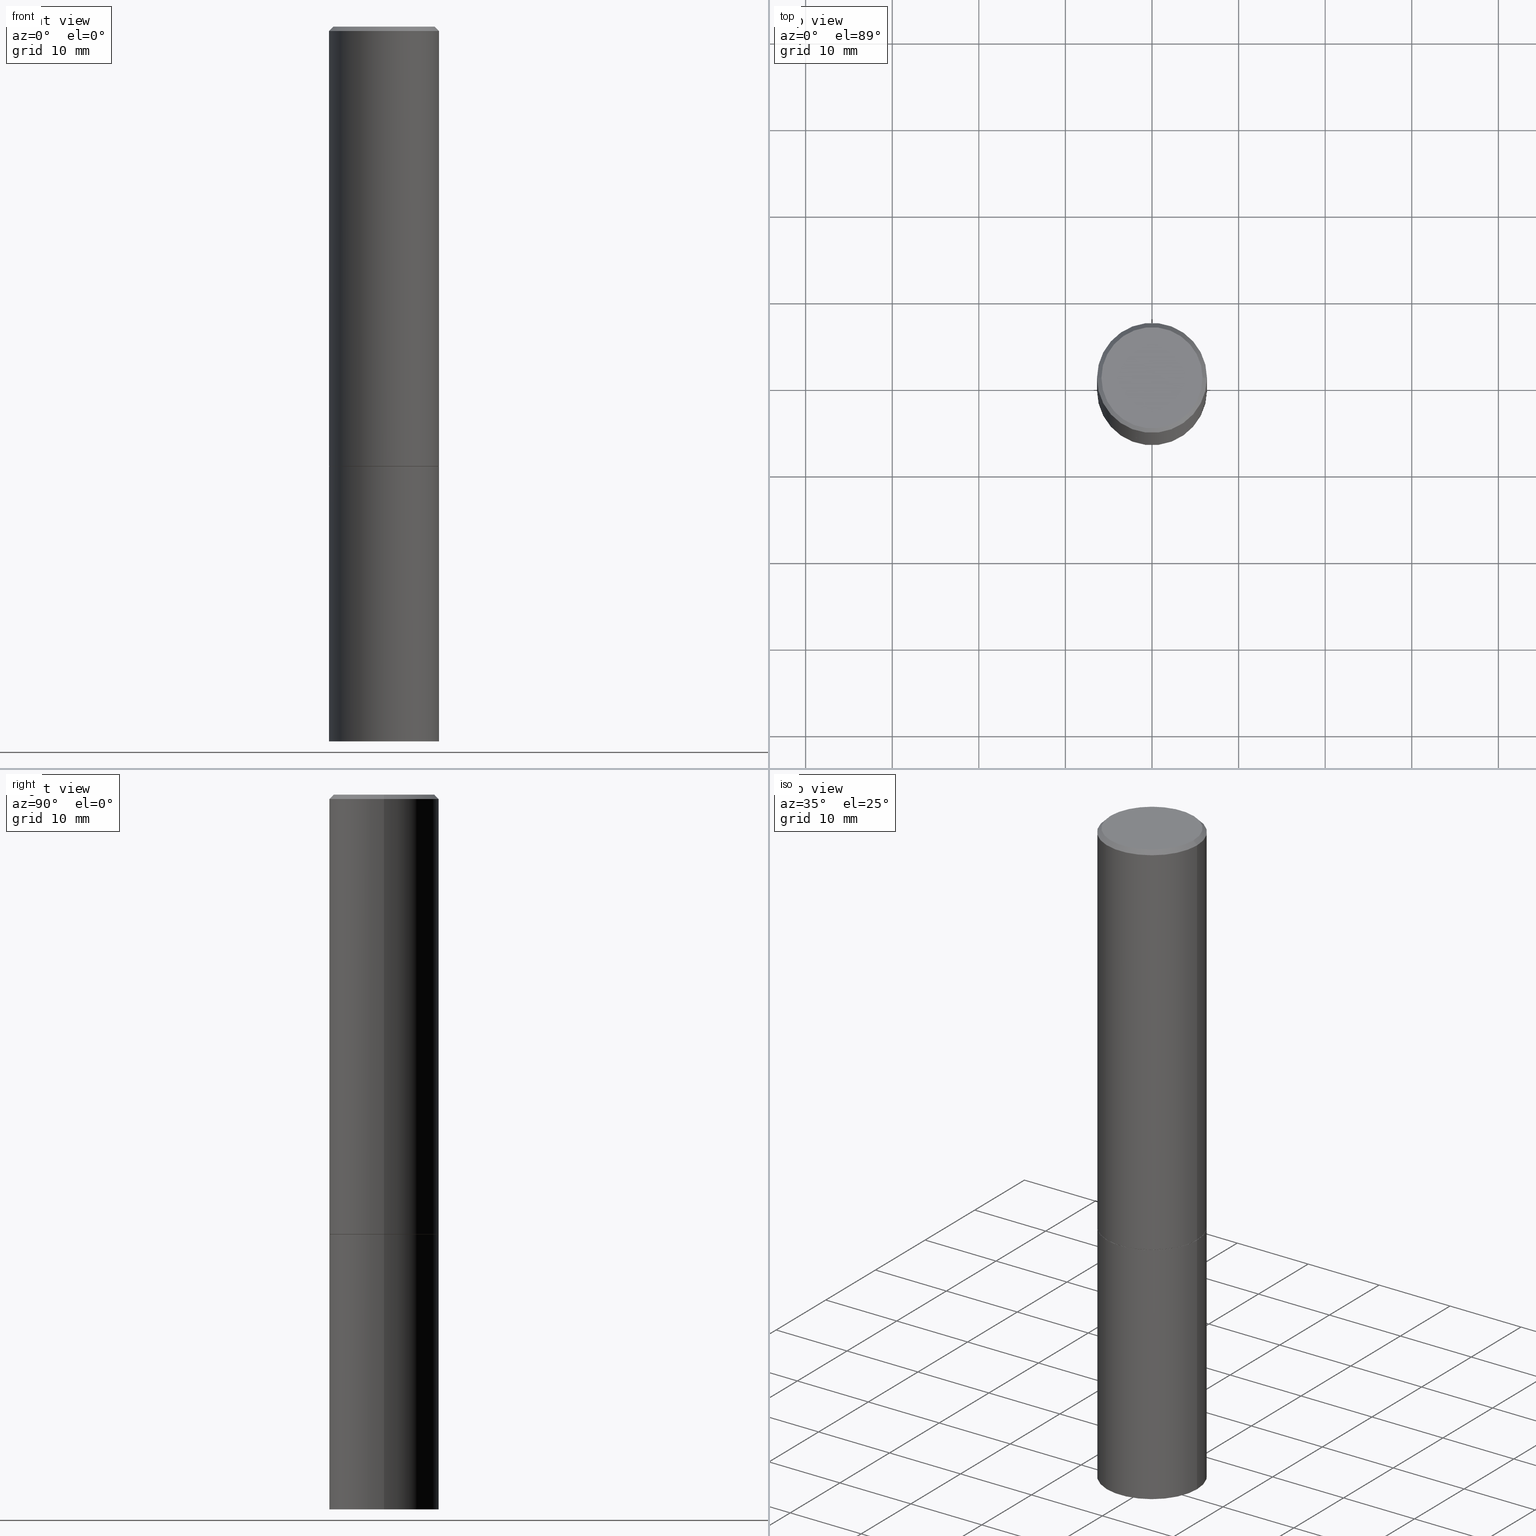
[diagram: canonical four-view strip — front | top / right | iso, engineering-drawing reading convention]
A machine part, canonical four-view strip (front | top / right | iso — engineering-drawing reading convention). The complete STEP part file that produces these views, byte-faithful:
ISO-10303-21;
HEADER;
FILE_DESCRIPTION (( 'STEP AP203' ),
    '1' );
FILE_NAME ('34625.STEP',
    '2024-02-27T16:30:26',
    ( '' ),
    ( '' ),
    'SwSTEP 2.0',
    'SolidWorks 2023',
    '' );
FILE_SCHEMA (( 'CONFIG_CONTROL_DESIGN' ));
ENDSEC;

DATA;
#1 = CARTESIAN_POINT ( 'NONE',  ( 7.947773620101693940E-29, -1.134731435124022443E-14, -3.250000000000000000 ) ) ;
#2 = CC_DESIGN_DATE_AND_TIME_ASSIGNMENT ( #306, #194, ( #244 ) ) ;
#3 = CARTESIAN_POINT ( 'NONE',  ( 4.890937612370272633E-29, -6.982962677686290376E-15, -1.999999999999999778 ) ) ;
#4 = EDGE_LOOP ( 'NONE', ( #330, #25, #141, #225 ) ) ;
#5 = ORIENTED_EDGE ( 'NONE', *, *, #246, .T. ) ;
#6 = VECTOR ( 'NONE', #48, 39.37007874015748143 ) ;
#7 = AXIS2_PLACEMENT_3D ( 'NONE', #85, #186, #196 ) ;
#8 = ORIENTED_EDGE ( 'NONE', *, *, #304, .F. ) ;
#9 = PLANE ( 'NONE',  #253 ) ;
#10 = MANIFOLD_SOLID_BREP ( 'Body-Move/Copy2[1]', #347 ) ;
#11 = LENGTH_MEASURE_WITH_UNIT ( LENGTH_MEASURE( 0.02539999999999999897 ), #316 );
#12 = DIRECTION ( 'NONE',  ( -2.445468806185136597E-29, 3.491481338843145583E-15, 1.000000000000000000 ) ) ;
#13 = VECTOR ( 'NONE', #72, 39.37007874015748143 ) ;
#14 = COORDINATED_UNIVERSAL_TIME_OFFSET ( 5, 0, .BEHIND. ) ;
#15 = PLANE ( 'NONE',  #130 ) ;
#16 = DIRECTION ( 'NONE',  ( -2.445468806185136877E-29, 3.491481338843145188E-15, 1.000000000000000000 ) ) ;
#17 = CARTESIAN_POINT ( 'NONE',  ( 0.000000000000000000, 0.000000000000000000, 0.000000000000000000 ) ) ;
#18 = CIRCLE ( 'NONE', #226, 0.2489999999999999991 ) ;
#19 = DIRECTION ( 'NONE',  ( 1.000000000000000000, -6.982962677686266711E-15, 0.000000000000000000 ) ) ;
#20 = CARTESIAN_POINT ( 'NONE',  ( 4.890937612370288923E-31, -6.982962677686312563E-17, -0.02000000000000006287 ) ) ;
#21 = EDGE_LOOP ( 'NONE', ( #255, #86, #183, #201 ) ) ;
#22 = LOCAL_TIME ( 11, 30, 26.00000000000000000, #14 ) ;
#23 = DIRECTION ( 'NONE',  ( -2.445468806185136597E-29, 3.491481338843145583E-15, 1.000000000000000000 ) ) ;
#24 = DIRECTION ( 'NONE',  ( -2.445468806185136597E-29, 3.491481338843145583E-15, 1.000000000000000000 ) ) ;
#25 = ORIENTED_EDGE ( 'NONE', *, *, #240, .T. ) ;
#26 = CIRCLE ( 'NONE', #231, 0.2500000000000000000 ) ;
#27 = DIRECTION ( 'NONE',  ( -0.7071067811865467956, 2.468850131082249172E-15, -0.7071067811865482389 ) ) ;
#28 = AXIS2_PLACEMENT_3D ( 'NONE', #151, #125, #358 ) ;
#29 = EDGE_LOOP ( 'NONE', ( #148, #341 ) ) ;
#30 = SHAPE_DEFINITION_REPRESENTATION ( #93, #52 ) ;
#31 = ORIENTED_EDGE ( 'NONE', *, *, #346, .T. ) ;
#32 = EDGE_CURVE ( 'NONE', #63, #311, #81, .T. ) ;
#33 = FACE_OUTER_BOUND ( 'NONE', #337, .T. ) ;
#34 = APPROVAL_ROLE ( '' ) ;
#35 = APPROVAL_DATE_TIME ( #351, #364 ) ;
#36 = AXIS2_PLACEMENT_3D ( 'NONE', #234, #61, #348 ) ;
#37 = FACE_OUTER_BOUND ( 'NONE', #343, .T. ) ;
#38 = PERSON_AND_ORGANIZATION ( #269, #289 ) ;
#39 = CARTESIAN_POINT ( 'NONE',  ( -0.2489999999999999991, -5.208412811295418518E-15, -1.999999999999999778 ) ) ;
#40 = PERSON_AND_ORGANIZATION_ROLE ( 'classification_officer' ) ;
#41 = DIRECTION ( 'NONE',  ( 1.000000000000000000, -6.982962677686266711E-15, 4.876176775795935793E-29 ) ) ;
#42 = PRODUCT_DEFINITION ( 'UNKNOWN', '', #90, #172 ) ;
#43 = CARTESIAN_POINT ( 'NONE',  ( 4.890937612370272633E-29, -6.982962677686290376E-15, -1.999999999999999778 ) ) ;
#44 =( GEOMETRIC_REPRESENTATION_CONTEXT ( 3 ) GLOBAL_UNCERTAINTY_ASSIGNED_CONTEXT ( ( #195 ) ) GLOBAL_UNIT_ASSIGNED_CONTEXT ( ( #299, #163, #290 ) ) REPRESENTATION_CONTEXT ( 'NONE', 'WORKASPACE' ) );
#45 = DIRECTION ( 'NONE',  ( 1.000000000000000000, -6.982962677686266711E-15, 0.000000000000000000 ) ) ;
#46 = ADVANCED_FACE ( 'NONE', ( #223 ), #133, .T. ) ;
#47 = DIRECTION ( 'NONE',  ( 1.000000000000000000, -6.982962677686266711E-15, 4.876176775795935793E-29 ) ) ;
#48 = DIRECTION ( 'NONE',  ( 0.7071067811866199593, -2.468850131083015945E-15, 0.7071067811864750752 ) ) ;
#49 = EDGE_CURVE ( 'NONE', #345, #295, #219, .T. ) ;
#50 = PERSON_AND_ORGANIZATION ( #269, #289 ) ;
#51 = CARTESIAN_POINT ( 'NONE',  ( 0.2500000000000000000, -1.745740669421566678E-15, 1.219044193948983948E-29 ) ) ;
#52 = ADVANCED_BREP_SHAPE_REPRESENTATION ( '34625', ( #10, #134, #28 ), #44 ) ;
#53 = CIRCLE ( 'NONE', #266, 0.2500000000000000000 ) ;
#54 = CARTESIAN_POINT ( 'NONE',  ( -0.2499999999999998890, 1.776356839400249676E-15, -1.229733772563726025E-29 ) ) ;
#55 = APPROVAL_ROLE ( '' ) ;
#56 = ORIENTED_EDGE ( 'NONE', *, *, #159, .F. ) ;
#57 = ORIENTED_EDGE ( 'NONE', *, *, #354, .T. ) ;
#58 = EDGE_LOOP ( 'NONE', ( #366, #308, #176, #188 ) ) ;
#59 = CIRCLE ( 'NONE', #303, 0.2299999999999997602 ) ;
#60 = AXIS2_PLACEMENT_3D ( 'NONE', #270, #182, #47 ) ;
#61 = DIRECTION ( 'NONE',  ( -2.438088387897960049E-29, 3.491481338843145188E-15, 1.000000000000000000 ) ) ;
#62 = CARTESIAN_POINT ( 'NONE',  ( -0.2299999999999997602, 1.640996229256270941E-15, 4.268512490089056766E-18 ) ) ;
#63 = VERTEX_POINT ( 'NONE', #293 ) ;
#64 = PERSON_AND_ORGANIZATION ( #269, #289 ) ;
#65 = DIRECTION ( 'NONE',  ( 1.000000000000000000, -6.982962677686266711E-15, 0.000000000000000000 ) ) ;
#66 = EDGE_CURVE ( 'NONE', #311, #251, #180, .T. ) ;
#67 = PERSON_AND_ORGANIZATION ( #269, #289 ) ;
#68 = DIRECTION ( 'NONE',  ( 1.000000000000000000, -6.982962677686266711E-15, 0.000000000000000000 ) ) ;
#69 = AXIS2_PLACEMENT_3D ( 'NONE', #352, #268, #326 ) ;
#70 = LOCAL_TIME ( 11, 30, 26.00000000000000000, #73 ) ;
#71 = SECURITY_CLASSIFICATION_LEVEL ( 'unclassified' ) ;
#72 = DIRECTION ( 'NONE',  ( -0.7071067811866199593, 7.493145998870616062E-15, 0.7071067811864750752 ) ) ;
#73 = COORDINATED_UNIVERSAL_TIME_OFFSET ( 5, 0, .BEHIND. ) ;
#74 = CARTESIAN_POINT ( 'NONE',  ( 4.890937612370273194E-29, -6.982962677686291165E-15, -2.000000000000000000 ) ) ;
#75 = EDGE_CURVE ( 'NONE', #109, #91, #26, .T. ) ;
#76 = DIRECTION ( 'NONE',  ( -2.445468806185136597E-29, 3.491481338843145583E-15, 1.000000000000000000 ) ) ;
#77 = CIRCLE ( 'NONE', #279, 0.2500000000000000000 ) ;
#78 = AXIS2_PLACEMENT_3D ( 'NONE', #258, #12, #122 ) ;
#79 = DIRECTION ( 'NONE',  ( -2.445468806185136597E-29, 3.491481338843145583E-15, 1.000000000000000000 ) ) ;
#80 = ORIENTED_EDGE ( 'NONE', *, *, #75, .T. ) ;
#81 = LINE ( 'NONE', #192, #6 ) ;
#82 = APPROVAL ( #191, 'UNSPECIFIED' ) ;
#83 = AXIS2_PLACEMENT_3D ( 'NONE', #20, #76, #132 ) ;
#84 = APPLICATION_CONTEXT ( 'configuration controlled 3d designs of mechanical parts and assemblies' ) ;
#85 = CARTESIAN_POINT ( 'NONE',  ( 7.947773620101693940E-29, -1.134731435124022443E-14, -3.250000000000000000 ) ) ;
#86 = ORIENTED_EDGE ( 'NONE', *, *, #283, .T. ) ;
#87 = CALENDAR_DATE ( 2024, 27, 2 ) ;
#88 = ORIENTED_EDGE ( 'NONE', *, *, #261, .F. ) ;
#89 = CIRCLE ( 'NONE', #220, 0.2500000000000000000 ) ;
#90 = PRODUCT_DEFINITION_FORMATION_WITH_SPECIFIED_SOURCE ( 'ANY', '', #108, .NOT_KNOWN. ) ;
#91 = VERTEX_POINT ( 'NONE', #155 ) ;
#92 = FACE_OUTER_BOUND ( 'NONE', #94, .T. ) ;
#93 = PRODUCT_DEFINITION_SHAPE ( 'NONE', 'NONE',  #42 ) ;
#94 = EDGE_LOOP ( 'NONE', ( #281, #228, #227, #300 ) ) ;
#95 = AXIS2_PLACEMENT_3D ( 'NONE', #230, #344, #96 ) ;
#96 = DIRECTION ( 'NONE',  ( 1.000000000000000000, -6.982962677686266711E-15, 4.876176775795935793E-29 ) ) ;
#97 = CARTESIAN_POINT ( 'NONE',  ( -0.2489999999999999991, -5.213711265643640920E-15, -1.999999999999999778 ) ) ;
#98 = APPLICATION_CONTEXT ( 'configuration controlled 3d designs of mechanical parts and assemblies' ) ;
#99 = APPROVAL_ROLE ( '' ) ;
#100 = DIRECTION ( 'NONE',  ( -2.445468806185136877E-29, 3.491481338843145188E-15, 1.000000000000000000 ) ) ;
#101 = MECHANICAL_CONTEXT ( 'NONE', #84, 'mechanical' ) ;
#102 = CYLINDRICAL_SURFACE ( 'NONE', #275, 0.2500000000000000000 ) ;
#103 = EDGE_CURVE ( 'NONE', #311, #345, #77, .T. ) ;
#104 = CARTESIAN_POINT ( 'NONE',  ( -1.043851414335219820E-46, 1.490343170380447200E-32, 4.268512490100411279E-18 ) ) ;
#105 = CARTESIAN_POINT ( 'NONE',  ( -0.2500000000000000000, -1.748293572161903489E-15, -1.998999999999999888 ) ) ;
#106 = LINE ( 'NONE', #224, #165 ) ;
#107 = DIRECTION ( 'NONE',  ( 1.000000000000000000, -6.982962677686267499E-15, 4.876225828469313926E-29 ) ) ;
#108 = PRODUCT ( '34625', '34625', '', ( #101 ) ) ;
#109 = VERTEX_POINT ( 'NONE', #178 ) ;
#110 = DATE_AND_TIME ( #87, #350 ) ;
#111 = CC_DESIGN_PERSON_AND_ORGANIZATION_ASSIGNMENT ( #64, #235, ( #108 ) ) ;
#112 = CARTESIAN_POINT ( 'NONE',  ( 4.888492143564087591E-29, -6.979471196347447369E-15, -1.998999999999999888 ) ) ;
#113 = VERTEX_POINT ( 'NONE', #39 ) ;
#114 = ADVANCED_FACE ( 'NONE', ( #129 ), #262, .F. ) ;
#115 = ORIENTED_EDGE ( 'NONE', *, *, #240, .F. ) ;
#116 = VECTOR ( 'NONE', #187, 39.37007874015748143 ) ;
#117 = ORIENTED_EDGE ( 'NONE', *, *, #317, .T. ) ;
#118 = VERTEX_POINT ( 'NONE', #62 ) ;
#119 = DIRECTION ( 'NONE',  ( 2.438088387897960049E-29, -3.491481338843145188E-15, -1.000000000000000000 ) ) ;
#120 = AXIS2_PLACEMENT_3D ( 'NONE', #140, #247, #45 ) ;
#121 = LOCAL_TIME ( 11, 30, 26.00000000000000000, #179 ) ;
#122 = DIRECTION ( 'NONE',  ( 1.000000000000000000, -6.982962677686266711E-15, 0.000000000000000000 ) ) ;
#123 = CALENDAR_DATE ( 2024, 27, 2 ) ;
#124 = DIRECTION ( 'NONE',  ( 2.438088387897960049E-29, -3.491481338843145188E-15, -1.000000000000000000 ) ) ;
#125 = DIRECTION ( 'NONE',  ( 0.000000000000000000, 0.000000000000000000, 1.000000000000000000 ) ) ;
#126 = CYLINDRICAL_SURFACE ( 'NONE', #95, 0.2499999999999998890 ) ;
#127 = ADVANCED_FACE ( 'NONE', ( #92 ), #146, .T. ) ;
#128 = PERSON_AND_ORGANIZATION ( #269, #289 ) ;
#129 = FACE_OUTER_BOUND ( 'NONE', #136, .T. ) ;
#130 = AXIS2_PLACEMENT_3D ( 'NONE', #356, #124, #206 ) ;
#131 = APPROVAL_PERSON_ORGANIZATION ( #50, #82, #55 ) ;
#132 = DIRECTION ( 'NONE',  ( 1.000000000000000000, -6.982962677686266711E-15, 0.000000000000000000 ) ) ;
#133 = CYLINDRICAL_SURFACE ( 'NONE', #211, 0.2499999999999998890 ) ;
#134 = MANIFOLD_SOLID_BREP ( 'Body-Move/Copy2[2]', #302 ) ;
#135 = DIRECTION ( 'NONE',  ( 2.445468806185136597E-29, -3.491481338843145583E-15, -1.000000000000000000 ) ) ;
#136 = EDGE_LOOP ( 'NONE', ( #8, #215 ) ) ;
#137 = LOCAL_TIME ( 11, 30, 26.00000000000000000, #257 ) ;
#138 = DIRECTION ( 'NONE',  ( -2.445468806185136597E-29, 3.491481338843145583E-15, 1.000000000000000000 ) ) ;
#139 = ADVANCED_FACE ( 'NONE', ( #291 ), #9, .F. ) ;
#140 = CARTESIAN_POINT ( 'NONE',  ( 4.890937612370288923E-31, -6.982962677686312563E-17, -0.02000000000000006287 ) ) ;
#141 = ORIENTED_EDGE ( 'NONE', *, *, #75, .F. ) ;
#142 = DIRECTION ( 'NONE',  ( -2.445468806185136597E-29, 3.491481338843145583E-15, 1.000000000000000000 ) ) ;
#143 = ORIENTED_EDGE ( 'NONE', *, *, #49, .F. ) ;
#144 = ORIENTED_EDGE ( 'NONE', *, *, #283, .F. ) ;
#145 = VECTOR ( 'NONE', #16, 39.37007874015748143 ) ;
#146 = CONICAL_SURFACE ( 'NONE', #213, 0.2489999999999999991, 0.7853981633975507526 ) ;
#147 = CC_DESIGN_APPROVAL ( #276, ( #90 ) ) ;
#148 = ORIENTED_EDGE ( 'NONE', *, *, #301, .F. ) ;
#149 = DIRECTION ( 'NONE',  ( -2.445468806185136597E-29, 3.491481338843145583E-15, 1.000000000000000000 ) ) ;
#150 = ADVANCED_FACE ( 'NONE', ( #37 ), #126, .T. ) ;
#151 = CARTESIAN_POINT ( 'NONE',  ( 0.000000000000000000, 0.000000000000000000, 0.000000000000000000 ) ) ;
#152 = PLANE ( 'NONE',  #363 ) ;
#153 = PERSON_AND_ORGANIZATION ( #269, #289 ) ;
#154 = PERSON_AND_ORGANIZATION_ROLE ( 'creator' ) ;
#155 = CARTESIAN_POINT ( 'NONE',  ( -0.2500000000000000000, -7.388781675063007725E-15, -2.000000000000000000 ) ) ;
#156 = DIRECTION ( 'NONE',  ( -1.000000000000000000, 6.982962677686265922E-15, -4.876176775795935793E-29 ) ) ;
#157 = AXIS2_PLACEMENT_3D ( 'NONE', #104, #263, #365 ) ;
#158 = CARTESIAN_POINT ( 'NONE',  ( -1.043851414335219820E-46, 1.490343170380447200E-32, 4.268512490100411279E-18 ) ) ;
#159 = EDGE_CURVE ( 'NONE', #113, #345, #324, .T. ) ;
#160 = DIRECTION ( 'NONE',  ( 1.000000000000000000, -6.982962677686266711E-15, 4.876176775795935793E-29 ) ) ;
#161 = LINE ( 'NONE', #243, #170 ) ;
#162 = CYLINDRICAL_SURFACE ( 'NONE', #60, 0.2500000000000000000 ) ;
#163 =( NAMED_UNIT ( * ) PLANE_ANGLE_UNIT ( ) SI_UNIT ( $, .RADIAN. ) );
#164 = DIMENSIONAL_EXPONENTS ( 1.000000000000000000, 0.000000000000000000, 0.000000000000000000, 0.000000000000000000, 0.000000000000000000, 0.000000000000000000, 0.000000000000000000 ) ;
#165 = VECTOR ( 'NONE', #336, 39.37007874015748143 ) ;
#166 = ADVANCED_FACE ( 'NONE', ( #322 ), #15, .F. ) ;
#167 = ADVANCED_FACE ( 'NONE', ( #318 ), #102, .T. ) ;
#168 = CARTESIAN_POINT ( 'NONE',  ( 0.000000000000000000, 0.000000000000000000, 0.000000000000000000 ) ) ;
#169 = LINE ( 'NONE', #51, #174 ) ;
#170 = VECTOR ( 'NONE', #27, 39.37007874015748143 ) ;
#171 = ORIENTED_EDGE ( 'NONE', *, *, #327, .T. ) ;
#172 = DESIGN_CONTEXT ( 'detailed design', #98, 'design' ) ;
#173 = ORIENTED_EDGE ( 'NONE', *, *, #265, .T. ) ;
#174 = VECTOR ( 'NONE', #361, 39.37007874015748143 ) ;
#175 = DIRECTION ( 'NONE',  ( -1.000000000000000000, 6.982962677686265922E-15, -4.876176775795935793E-29 ) ) ;
#176 = ORIENTED_EDGE ( 'NONE', *, *, #252, .F. ) ;
#177 = DIRECTION ( 'NONE',  ( 1.000000000000000000, -6.982962677686266711E-15, 0.000000000000000000 ) ) ;
#178 = CARTESIAN_POINT ( 'NONE',  ( 0.2500000000000000000, -8.728703347107857054E-15, -2.000000000000000000 ) ) ;
#179 = COORDINATED_UNIVERSAL_TIME_OFFSET ( 5, 0, .BEHIND. ) ;
#180 = LINE ( 'NONE', #256, #184 ) ;
#181 = PERSON_AND_ORGANIZATION ( #269, #289 ) ;
#182 = DIRECTION ( 'NONE',  ( -2.445468806185136597E-29, 3.491481338843145583E-15, 1.000000000000000000 ) ) ;
#183 = ORIENTED_EDGE ( 'NONE', *, *, #252, .T. ) ;
#184 = VECTOR ( 'NONE', #100, 39.37007874015748143 ) ;
#185 = CIRCLE ( 'NONE', #333, 0.2489999999999999991 ) ;
#186 = DIRECTION ( 'NONE',  ( -2.445468806185136597E-29, 3.491481338843145583E-15, 1.000000000000000000 ) ) ;
#187 = DIRECTION ( 'NONE',  ( -2.445468806185136877E-29, 3.491481338843145188E-15, 1.000000000000000000 ) ) ;
#188 = ORIENTED_EDGE ( 'NONE', *, *, #66, .F. ) ;
#189 = APPLICATION_PROTOCOL_DEFINITION ( 'international standard', 'config_control_design', 1994, #98 ) ;
#190 = VERTEX_POINT ( 'NONE', #264 ) ;
#191 = APPROVAL_STATUS ( 'not_yet_approved' ) ;
#192 = CARTESIAN_POINT ( 'NONE',  ( 0.2489999999999999991, -8.721720384430171040E-15, -1.999999999999999778 ) ) ;
#193 = AXIS2_PLACEMENT_3D ( 'NONE', #1, #24, #217 ) ;
#194 = DATE_TIME_ROLE ( 'classification_date' ) ;
#195 = UNCERTAINTY_MEASURE_WITH_UNIT (LENGTH_MEASURE( 1.000000000000000082E-05 ), #299, 'distance_accuracy_value', 'NONE');
#196 = DIRECTION ( 'NONE',  ( 1.000000000000000000, -6.982962677686262766E-15, 0.000000000000000000 ) ) ;
#197 = ADVANCED_FACE ( 'NONE', ( #287 ), #152, .T. ) ;
#198 = AXIS2_PLACEMENT_3D ( 'NONE', #241, #135, #359 ) ;
#199 = VERTEX_POINT ( 'NONE', #285 ) ;
#200 = CC_DESIGN_DATE_AND_TIME_ASSIGNMENT ( #233, #216, ( #42 ) ) ;
#201 = ORIENTED_EDGE ( 'NONE', *, *, #317, .F. ) ;
#202 = ADVANCED_FACE ( 'NONE', ( #33 ), #296, .T. ) ;
#203 = ORIENTED_EDGE ( 'NONE', *, *, #32, .T. ) ;
#204 = CARTESIAN_POINT ( 'NONE',  ( 1.745740669421645958E-15, 0.2499999999999886480, -3.250000000000001332 ) ) ;
#205 = APPROVAL_PERSON_ORGANIZATION ( #38, #276, #99 ) ;
#206 = DIRECTION ( 'NONE',  ( -1.000000000000000000, 6.982962677686265922E-15, -4.876176775795935793E-29 ) ) ;
#207 = CARTESIAN_POINT ( 'NONE',  ( 4.888492143564087591E-29, -6.979471196347447369E-15, -1.998999999999999888 ) ) ;
#208 = ADVANCED_FACE ( 'NONE', ( #232 ), #349, .T. ) ;
#209 = CALENDAR_DATE ( 2024, 27, 2 ) ;
#210 = CARTESIAN_POINT ( 'NONE',  ( 4.890937612370272633E-29, -6.982962677686290376E-15, -1.999999999999999778 ) ) ;
#211 = AXIS2_PLACEMENT_3D ( 'NONE', #168, #23, #160 ) ;
#212 = APPLICATION_PROTOCOL_DEFINITION ( 'international standard', 'config_control_design', 1994, #84 ) ;
#213 = AXIS2_PLACEMENT_3D ( 'NONE', #210, #149, #68 ) ;
#214 = DIRECTION ( 'NONE',  ( -2.445468806185136597E-29, 3.491481338843145583E-15, 1.000000000000000000 ) ) ;
#215 = ORIENTED_EDGE ( 'NONE', *, *, #265, .F. ) ;
#216 = DATE_TIME_ROLE ( 'creation_date' ) ;
#217 = DIRECTION ( 'NONE',  ( 1.000000000000000000, -6.982962677686262766E-15, 0.000000000000000000 ) ) ;
#218 = DIRECTION ( 'NONE',  ( 1.000000000000000000, -6.982962677686266711E-15, 0.000000000000000000 ) ) ;
#219 = LINE ( 'NONE', #54, #145 ) ;
#220 = AXIS2_PLACEMENT_3D ( 'NONE', #74, #138, #319 ) ;
#221 = CARTESIAN_POINT ( 'NONE',  ( 0.2499999999999998057, -1.784954126219744611E-15, -0.02000000000000006287 ) ) ;
#222 = ORIENTED_EDGE ( 'NONE', *, *, #286, .T. ) ;
#223 = FACE_OUTER_BOUND ( 'NONE', #58, .T. ) ;
#224 = CARTESIAN_POINT ( 'NONE',  ( 0.2499999999999998057, -1.784954126219744611E-15, -0.02000000000000006287 ) ) ;
#225 = ORIENTED_EDGE ( 'NONE', *, *, #286, .F. ) ;
#226 = AXIS2_PLACEMENT_3D ( 'NONE', #43, #307, #278 ) ;
#227 = ORIENTED_EDGE ( 'NONE', *, *, #103, .F. ) ;
#228 = ORIENTED_EDGE ( 'NONE', *, *, #159, .T. ) ;
#229 = VERTEX_POINT ( 'NONE', #298 ) ;
#230 = CARTESIAN_POINT ( 'NONE',  ( 0.000000000000000000, 0.000000000000000000, 0.000000000000000000 ) ) ;
#231 = AXIS2_PLACEMENT_3D ( 'NONE', #320, #260, #65 ) ;
#232 = FACE_OUTER_BOUND ( 'NONE', #242, .T. ) ;
#233 = DATE_AND_TIME ( #123, #22 ) ;
#234 = CARTESIAN_POINT ( 'NONE',  ( 4.890937612370273194E-29, -6.982962677686291165E-15, -2.000000000000000000 ) ) ;
#235 = PERSON_AND_ORGANIZATION_ROLE ( 'design_owner' ) ;
#236 = ADVANCED_FACE ( 'NONE', ( #273 ), #162, .T. ) ;
#237 = DIRECTION ( 'NONE',  ( -2.445468806185136597E-29, 3.491481338843145583E-15, 1.000000000000000000 ) ) ;
#238 = CIRCLE ( 'NONE', #120, 0.2499999999999998057 ) ;
#239 = FACE_OUTER_BOUND ( 'NONE', #21, .T. ) ;
#240 = EDGE_CURVE ( 'NONE', #229, #91, #249, .T. ) ;
#241 = CARTESIAN_POINT ( 'NONE',  ( 4.890937612370288923E-31, -6.982962677686312563E-17, -0.02000000000000006287 ) ) ;
#242 = EDGE_LOOP ( 'NONE', ( #144, #332, #117, #282 ) ) ;
#243 = CARTESIAN_POINT ( 'NONE',  ( -0.2499999999999998057, 1.675911042644702196E-15, -0.02000000000000006287 ) ) ;
#244 = SECURITY_CLASSIFICATION ( '', '', #71 ) ;
#245 = APPROVAL_STATUS ( 'not_yet_approved' ) ;
#246 = EDGE_CURVE ( 'NONE', #229, #190, #309, .T. ) ;
#247 = DIRECTION ( 'NONE',  ( -2.445468806185136597E-29, 3.491481338843145583E-15, 1.000000000000000000 ) ) ;
#248 = APPROVAL_PERSON_ORGANIZATION ( #128, #364, #34 ) ;
#249 = LINE ( 'NONE', #328, #116 ) ;
#250 = ORIENTED_EDGE ( 'NONE', *, *, #277, .T. ) ;
#251 = VERTEX_POINT ( 'NONE', #221 ) ;
#252 = EDGE_CURVE ( 'NONE', #251, #295, #280, .T. ) ;
#253 = AXIS2_PLACEMENT_3D ( 'NONE', #288, #119, #156 ) ;
#254 = EDGE_LOOP ( 'NONE', ( #57, #171 ) ) ;
#255 = ORIENTED_EDGE ( 'NONE', *, *, #327, .F. ) ;
#256 = CARTESIAN_POINT ( 'NONE',  ( 0.2499999999999998890, -1.745740669421565889E-15, 1.219044193948983388E-29 ) ) ;
#257 = COORDINATED_UNIVERSAL_TIME_OFFSET ( 5, 0, .BEHIND. ) ;
#258 = CARTESIAN_POINT ( 'NONE',  ( 4.890937612370272633E-29, -6.982962677686290376E-15, -1.999999999999999778 ) ) ;
#259 = PERSON_AND_ORGANIZATION_ROLE ( 'creator' ) ;
#260 = DIRECTION ( 'NONE',  ( -2.445468806185136597E-29, 3.491481338843145583E-15, 1.000000000000000000 ) ) ;
#261 = EDGE_CURVE ( 'NONE', #295, #251, #238, .T. ) ;
#262 = PLANE ( 'NONE',  #36 ) ;
#263 = DIRECTION ( 'NONE',  ( -2.445468806185136597E-29, 3.491481338843145583E-15, 1.000000000000000000 ) ) ;
#264 = CARTESIAN_POINT ( 'NONE',  ( 0.2500000000000000000, -1.309305502066178953E-14, -3.250000000000000000 ) ) ;
#265 = EDGE_CURVE ( 'NONE', #113, #63, #185, .T. ) ;
#266 = AXIS2_PLACEMENT_3D ( 'NONE', #112, #79, #218 ) ;
#267 = CONICAL_SURFACE ( 'NONE', #198, 0.2499999999999998057, 0.7853981633974472798 ) ;
#268 = DIRECTION ( 'NONE',  ( 2.445468806185136597E-29, -3.491481338843145583E-15, -1.000000000000000000 ) ) ;
#269 = PERSON ( 'UNSPECIFIED', 'UNSPECIFIED', 'UNSPECIFIED', ('UNSPECIFIED'), ('UNSPECIFIED'), ('UNSPECIFIED') ) ;
#270 = CARTESIAN_POINT ( 'NONE',  ( 0.000000000000000000, 0.000000000000000000, 0.000000000000000000 ) ) ;
#271 = EDGE_LOOP ( 'NONE', ( #80, #31 ) ) ;
#272 = ADVANCED_FACE ( 'NONE', ( #239 ), #267, .T. ) ;
#273 = FACE_OUTER_BOUND ( 'NONE', #4, .T. ) ;
#274 = CALENDAR_DATE ( 2024, 27, 2 ) ;
#275 = AXIS2_PLACEMENT_3D ( 'NONE', #17, #214, #41 ) ;
#276 = APPROVAL ( #353, 'UNSPECIFIED' ) ;
#277 = EDGE_CURVE ( 'NONE', #345, #311, #53, .T. ) ;
#278 = DIRECTION ( 'NONE',  ( 1.000000000000000000, -6.982962677686266711E-15, 0.000000000000000000 ) ) ;
#279 = AXIS2_PLACEMENT_3D ( 'NONE', #207, #237, #177 ) ;
#280 = CIRCLE ( 'NONE', #83, 0.2499999999999998057 ) ;
#281 = ORIENTED_EDGE ( 'NONE', *, *, #304, .T. ) ;
#282 = ORIENTED_EDGE ( 'NONE', *, *, #261, .T. ) ;
#283 = EDGE_CURVE ( 'NONE', #199, #251, #106, .T. ) ;
#284 = ORIENTED_EDGE ( 'NONE', *, *, #277, .F. ) ;
#285 = CARTESIAN_POINT ( 'NONE',  ( 0.2299999999999997602, -1.681434332853597631E-15, 4.268512490111905999E-18 ) ) ;
#286 = EDGE_CURVE ( 'NONE', #190, #109, #169, .T. ) ;
#287 = FACE_OUTER_BOUND ( 'NONE', #29, .T. ) ;
#288 = CARTESIAN_POINT ( 'NONE',  ( 1.606081415867839490E-15, 0.2299999999999997602, -8.009064516888724897E-16 ) ) ;
#289 = ORGANIZATION ( 'UNSPECIFIED', 'UNSPECIFIED', '' ) ;
#290 =( NAMED_UNIT ( * ) SI_UNIT ( $, .STERADIAN. ) SOLID_ANGLE_UNIT ( ) );
#291 = FACE_OUTER_BOUND ( 'NONE', #254, .T. ) ;
#292 = CALENDAR_DATE ( 2024, 27, 2 ) ;
#293 = CARTESIAN_POINT ( 'NONE',  ( 0.2489999999999999991, -8.721720384430171040E-15, -1.999999999999999778 ) ) ;
#294 = DIRECTION ( 'NONE',  ( -2.445468806185136597E-29, 3.491481338843145583E-15, 1.000000000000000000 ) ) ;
#295 = VERTEX_POINT ( 'NONE', #362 ) ;
#296 = CONICAL_SURFACE ( 'NONE', #78, 0.2489999999999999991, 0.7853981633975507526 ) ;
#297 = CARTESIAN_POINT ( 'NONE',  ( 0.2500000000000000000, -8.725211865769014047E-15, -1.998999999999999888 ) ) ;
#298 = CARTESIAN_POINT ( 'NONE',  ( -0.2500000000000000000, -7.388781675063007725E-15, -3.250000000000000000 ) ) ;
#299 =( CONVERSION_BASED_UNIT ( 'INCH', #11 ) LENGTH_UNIT ( ) NAMED_UNIT ( #164 ) );
#300 = ORIENTED_EDGE ( 'NONE', *, *, #32, .F. ) ;
#301 = EDGE_CURVE ( 'NONE', #190, #229, #329, .T. ) ;
#302 = CLOSED_SHELL ( 'NONE', ( #127, #46, #272, #208, #150, #202, #114, #139 ) ) ;
#303 = AXIS2_PLACEMENT_3D ( 'NONE', #158, #142, #107 ) ;
#304 = EDGE_CURVE ( 'NONE', #63, #113, #18, .T. ) ;
#305 = CC_DESIGN_PERSON_AND_ORGANIZATION_ASSIGNMENT ( #355, #323, ( #90 ) ) ;
#306 = DATE_AND_TIME ( #274, #70 ) ;
#307 = DIRECTION ( 'NONE',  ( -2.445468806185136597E-29, 3.491481338843145583E-15, 1.000000000000000000 ) ) ;
#308 = ORIENTED_EDGE ( 'NONE', *, *, #49, .T. ) ;
#309 = CIRCLE ( 'NONE', #193, 0.2500000000000000000 ) ;
#310 = ORIENTED_EDGE ( 'NONE', *, *, #66, .T. ) ;
#311 = VERTEX_POINT ( 'NONE', #297 ) ;
#312 = DIRECTION ( 'NONE',  ( 2.438088387897960049E-29, -3.491481338843145188E-15, -1.000000000000000000 ) ) ;
#313 = CIRCLE ( 'NONE', #157, 0.2299999999999997602 ) ;
#314 = CC_DESIGN_SECURITY_CLASSIFICATION ( #244, ( #90 ) ) ;
#315 = ORIENTED_EDGE ( 'NONE', *, *, #346, .F. ) ;
#316 =( LENGTH_UNIT ( ) NAMED_UNIT ( * ) SI_UNIT ( $, .METRE. ) );
#317 = EDGE_CURVE ( 'NONE', #118, #295, #161, .T. ) ;
#318 = FACE_OUTER_BOUND ( 'NONE', #339, .T. ) ;
#319 = DIRECTION ( 'NONE',  ( 1.000000000000000000, -6.982962677686266711E-15, 0.000000000000000000 ) ) ;
#320 = CARTESIAN_POINT ( 'NONE',  ( 4.890937612370273194E-29, -6.982962677686291165E-15, -2.000000000000000000 ) ) ;
#321 = APPROVAL_DATE_TIME ( #325, #276 ) ;
#322 = FACE_OUTER_BOUND ( 'NONE', #271, .T. ) ;
#323 = PERSON_AND_ORGANIZATION_ROLE ( 'design_supplier' ) ;
#324 = LINE ( 'NONE', #97, #13 ) ;
#325 = DATE_AND_TIME ( #209, #121 ) ;
#326 = DIRECTION ( 'NONE',  ( -1.000000000000000000, 6.982962677686266711E-15, 0.000000000000000000 ) ) ;
#327 = EDGE_CURVE ( 'NONE', #199, #118, #59, .T. ) ;
#328 = CARTESIAN_POINT ( 'NONE',  ( -0.2500000000000000000, 1.776356839400250465E-15, -1.229733772563726445E-29 ) ) ;
#329 = CIRCLE ( 'NONE', #7, 0.2500000000000000000 ) ;
#330 = ORIENTED_EDGE ( 'NONE', *, *, #301, .T. ) ;
#331 = APPROVAL_DATE_TIME ( #110, #82 ) ;
#332 = ORIENTED_EDGE ( 'NONE', *, *, #354, .F. ) ;
#333 = AXIS2_PLACEMENT_3D ( 'NONE', #3, #294, #19 ) ;
#334 = CC_DESIGN_PERSON_AND_ORGANIZATION_ASSIGNMENT ( #181, #40, ( #244 ) ) ;
#335 = CC_DESIGN_PERSON_AND_ORGANIZATION_ASSIGNMENT ( #153, #259, ( #42 ) ) ;
#336 = DIRECTION ( 'NONE',  ( 0.7071067811865467956, -7.319954787623254468E-15, -0.7071067811865482389 ) ) ;
#337 = EDGE_LOOP ( 'NONE', ( #56, #173, #203, #284 ) ) ;
#338 = COORDINATED_UNIVERSAL_TIME_OFFSET ( 5, 0, .BEHIND. ) ;
#339 = EDGE_LOOP ( 'NONE', ( #115, #5, #222, #315 ) ) ;
#340 = CC_DESIGN_APPROVAL ( #364, ( #42 ) ) ;
#341 = ORIENTED_EDGE ( 'NONE', *, *, #246, .F. ) ;
#342 = PRODUCT_RELATED_PRODUCT_CATEGORY ( 'detail', '', ( #108 ) ) ;
#343 = EDGE_LOOP ( 'NONE', ( #143, #250, #310, #88 ) ) ;
#344 = DIRECTION ( 'NONE',  ( -2.445468806185136597E-29, 3.491481338843145583E-15, 1.000000000000000000 ) ) ;
#345 = VERTEX_POINT ( 'NONE', #105 ) ;
#346 = EDGE_CURVE ( 'NONE', #91, #109, #89, .T. ) ;
#347 = CLOSED_SHELL ( 'NONE', ( #236, #197, #166, #167 ) ) ;
#348 = DIRECTION ( 'NONE',  ( 1.000000000000000000, -6.982962677686265922E-15, 4.876176775795935793E-29 ) ) ;
#349 = CONICAL_SURFACE ( 'NONE', #69, 0.2499999999999998057, 0.7853981633974472798 ) ;
#350 = LOCAL_TIME ( 11, 30, 26.00000000000000000, #338 ) ;
#351 = DATE_AND_TIME ( #292, #137 ) ;
#352 = CARTESIAN_POINT ( 'NONE',  ( 4.890937612370288923E-31, -6.982962677686312563E-17, -0.02000000000000006287 ) ) ;
#353 = APPROVAL_STATUS ( 'not_yet_approved' ) ;
#354 = EDGE_CURVE ( 'NONE', #118, #199, #313, .T. ) ;
#355 = PERSON_AND_ORGANIZATION ( #269, #289 ) ;
#356 = CARTESIAN_POINT ( 'NONE',  ( 1.745740669421615390E-15, 0.2499999999999930334, -2.000000000000000888 ) ) ;
#357 = CC_DESIGN_APPROVAL ( #82, ( #244 ) ) ;
#358 = DIRECTION ( 'NONE',  ( 1.000000000000000000, 0.000000000000000000, 0.000000000000000000 ) ) ;
#359 = DIRECTION ( 'NONE',  ( -1.000000000000000000, 6.982962677686266711E-15, 0.000000000000000000 ) ) ;
#360 = CC_DESIGN_PERSON_AND_ORGANIZATION_ASSIGNMENT ( #67, #154, ( #90 ) ) ;
#361 = DIRECTION ( 'NONE',  ( -2.445468806185136877E-29, 3.491481338843145188E-15, 1.000000000000000000 ) ) ;
#362 = CARTESIAN_POINT ( 'NONE',  ( -0.2499999999999998057, 1.675911042644702196E-15, -0.02000000000000006287 ) ) ;
#363 = AXIS2_PLACEMENT_3D ( 'NONE', #204, #312, #175 ) ;
#364 = APPROVAL ( #245, 'UNSPECIFIED' ) ;
#365 = DIRECTION ( 'NONE',  ( 1.000000000000000000, -6.982962677686267499E-15, 4.876225828469313926E-29 ) ) ;
#366 = ORIENTED_EDGE ( 'NONE', *, *, #103, .T. ) ;
ENDSEC;
END-ISO-10303-21;
